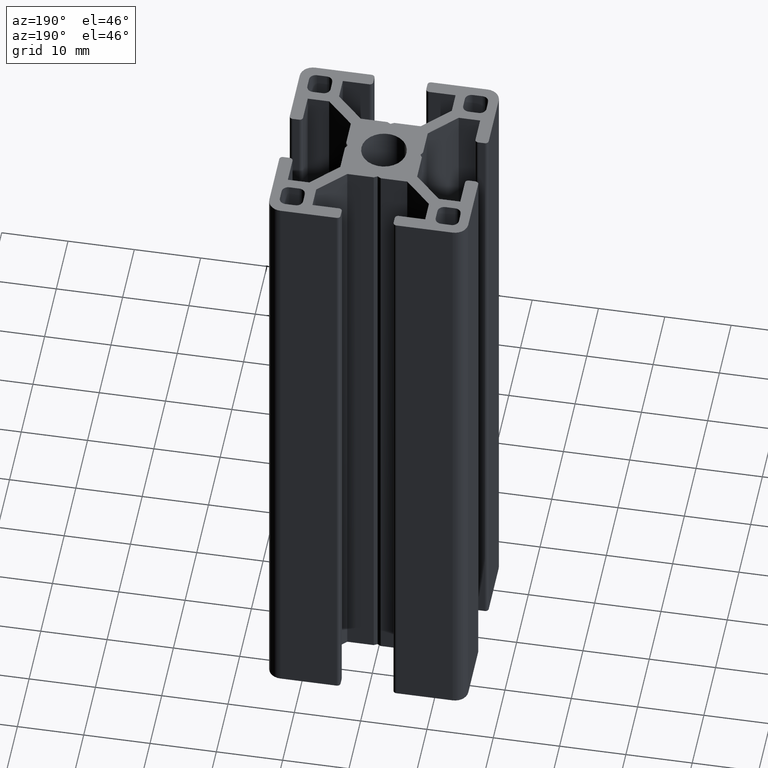
[diagram: clean part render]
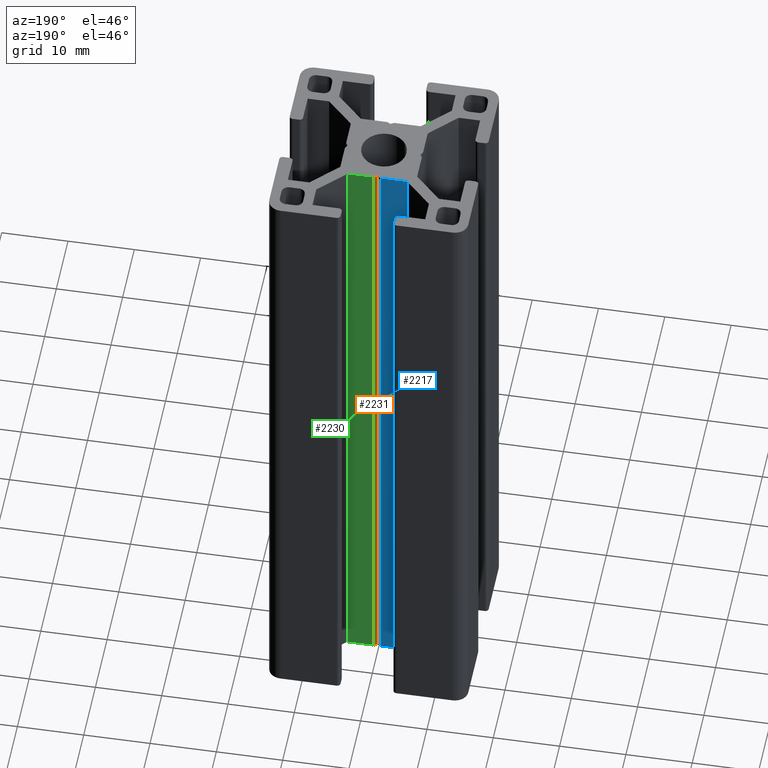
[diagram: same view with three faces highlighted in distinct colors, each labeled with its STEP entity id]
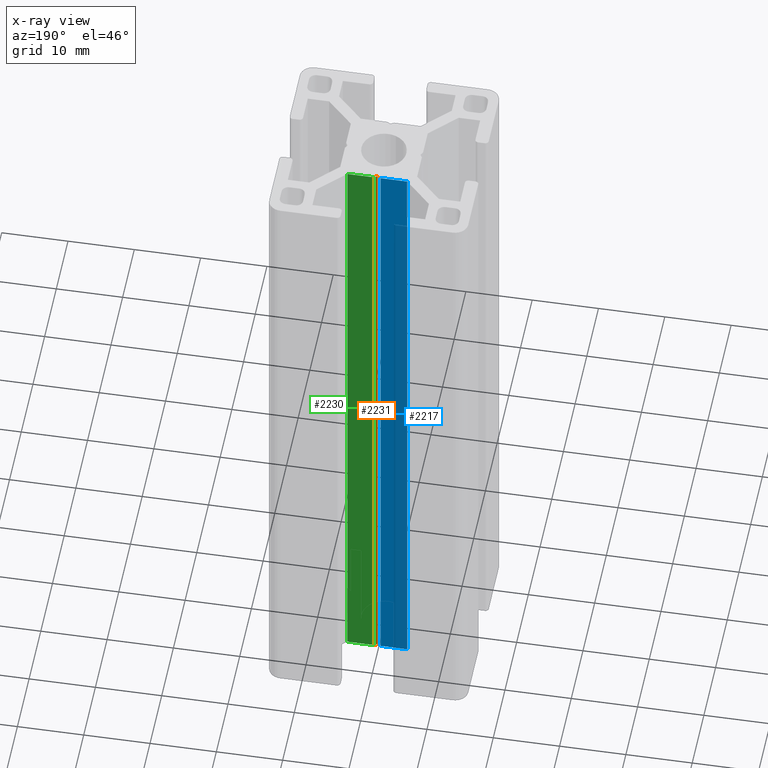
[diagram: x-ray of the same camera — body ghosted, the three highlighted faces saturated]
A machine part, auxiliary view with three faces highlighted in distinct colors.
The next image is the same camera in x-ray (body ghosted, the three faces saturated) — at least one of them is partly hidden behind the body in this view.
Their STEP definitions:

[orange] entity #2231 — the highlighted planar face has unit normal (0.5, -0.866, 0).
#224=FACE_OUTER_BOUND('',#336,.T.);
#336=EDGE_LOOP('',(#1764,#1765,#1766,#1767));
#576=LINE('',#3602,#828);
#577=LINE('',#3605,#829);
#578=LINE('',#3607,#830);
#579=LINE('',#3608,#831);
#828=VECTOR('',#2940,100.);
#829=VECTOR('',#2943,0.599999999999994);
#830=VECTOR('',#2944,0.599999999999994);
#831=VECTOR('',#2945,100.);
#1056=VERTEX_POINT('',#3598);
#1057=VERTEX_POINT('',#3600);
#1058=VERTEX_POINT('',#3604);
#1059=VERTEX_POINT('',#3606);
#1356=EDGE_CURVE('',#1057,#1056,#576,.T.);
#1357=EDGE_CURVE('',#1056,#1058,#577,.T.);
#1358=EDGE_CURVE('',#1059,#1057,#578,.T.);
#1359=EDGE_CURVE('',#1059,#1058,#579,.T.);
#1764=ORIENTED_EDGE('',*,*,#1357,.F.);
#1765=ORIENTED_EDGE('',*,*,#1356,.F.);
#1766=ORIENTED_EDGE('',*,*,#1358,.F.);
#1767=ORIENTED_EDGE('',*,*,#1359,.T.);
#2128=PLANE('',#2402);
#2231=ADVANCED_FACE('',(#224),#2128,.F.);
#2402=AXIS2_PLACEMENT_3D('',#3603,#2941,#2942);
#2940=DIRECTION('',(0.,0.,1.));
#2941=DIRECTION('center_axis',(0.500000000000004,-0.866025403784437,0.));
#2942=DIRECTION('ref_axis',(0.866025403784437,0.500000000000004,0.));
#2943=DIRECTION('',(-0.866025403784436,-0.500000000000004,0.));
#2944=DIRECTION('',(0.866025403784436,0.500000000000004,0.));
#2945=DIRECTION('',(0.,0.,1.));
#3598=CARTESIAN_POINT('',(0.519618478287942,5.79999543105503,100.));
#3600=CARTESIAN_POINT('',(0.519618478287942,5.79999543105503,0.));
#3602=CARTESIAN_POINT('',(0.519618478287942,5.79999543105503,0.));
#3603=CARTESIAN_POINT('Origin',(3.23601728524636E-6,5.49999543105503,0.));
#3604=CARTESIAN_POINT('',(3.23601728524636E-6,5.49999543105503,100.));
#3605=CARTESIAN_POINT('',(-1.19078191840288,4.81249530160353,100.));
#3606=CARTESIAN_POINT('',(3.23601728524636E-6,5.49999543105503,0.));
#3607=CARTESIAN_POINT('',(-1.19078191840288,4.81249530160353,0.));
#3608=CARTESIAN_POINT('',(3.23601728524636E-6,5.49999543105503,0.));

[blue] entity #2217 — the highlighted planar face has unit normal (0, -1, 0).
#210=FACE_OUTER_BOUND('',#322,.T.);
#322=EDGE_LOOP('',(#1708,#1709,#1710,#1711));
#541=LINE('',#3516,#793);
#542=LINE('',#3518,#794);
#543=LINE('',#3520,#795);
#544=LINE('',#3521,#796);
#793=VECTOR('',#2863,4.00759154447611);
#794=VECTOR('',#2864,100.);
#795=VECTOR('',#2865,4.00759154447611);
#796=VECTOR('',#2866,100.);
#1026=VERTEX_POINT('',#3514);
#1027=VERTEX_POINT('',#3515);
#1028=VERTEX_POINT('',#3517);
#1029=VERTEX_POINT('',#3519);
#1313=EDGE_CURVE('',#1026,#1027,#541,.T.);
#1314=EDGE_CURVE('',#1028,#1026,#542,.T.);
#1315=EDGE_CURVE('',#1029,#1028,#543,.T.);
#1316=EDGE_CURVE('',#1029,#1027,#544,.T.);
#1708=ORIENTED_EDGE('',*,*,#1313,.F.);
#1709=ORIENTED_EDGE('',*,*,#1314,.F.);
#1710=ORIENTED_EDGE('',*,*,#1315,.F.);
#1711=ORIENTED_EDGE('',*,*,#1316,.T.);
#2118=PLANE('',#2380);
#2217=ADVANCED_FACE('',(#210),#2118,.F.);
#2380=AXIS2_PLACEMENT_3D('',#3513,#2861,#2862);
#2861=DIRECTION('center_axis',(0.,-1.,0.));
#2862=DIRECTION('ref_axis',(1.,0.,0.));
#2863=DIRECTION('',(-1.,0.,0.));
#2864=DIRECTION('',(0.,0.,1.));
#2865=DIRECTION('',(1.,0.,0.));
#2866=DIRECTION('',(0.,0.,1.));
#3513=CARTESIAN_POINT('Origin',(-4.52720355072949,5.79999543105503,0.));
#3514=CARTESIAN_POINT('',(-0.51961200625338,5.79999543105503,100.));
#3515=CARTESIAN_POINT('',(-4.52720355072949,5.79999543105503,100.));
#3516=CARTESIAN_POINT('',(-2.26360177536475,5.79999543105503,100.));
#3517=CARTESIAN_POINT('',(-0.51961200625338,5.79999543105503,0.));
#3518=CARTESIAN_POINT('',(-0.51961200625338,5.79999543105503,0.));
#3519=CARTESIAN_POINT('',(-4.52720355072949,5.79999543105503,0.));
#3520=CARTESIAN_POINT('',(-2.26360177536475,5.79999543105503,0.));
#3521=CARTESIAN_POINT('',(-4.52720355072949,5.79999543105503,0.));

[green] entity #2230 — the highlighted planar face has unit normal (0, -1, 0).
#223=FACE_OUTER_BOUND('',#335,.T.);
#335=EDGE_LOOP('',(#1760,#1761,#1762,#1763));
#573=LINE('',#3596,#825);
#574=LINE('',#3599,#826);
#575=LINE('',#3601,#827);
#576=LINE('',#3602,#828);
#825=VECTOR('',#2935,100.);
#826=VECTOR('',#2938,4.00759154447611);
#827=VECTOR('',#2939,4.00759154447611);
#828=VECTOR('',#2940,100.);
#1054=VERTEX_POINT('',#3592);
#1055=VERTEX_POINT('',#3594);
#1056=VERTEX_POINT('',#3598);
#1057=VERTEX_POINT('',#3600);
#1353=EDGE_CURVE('',#1055,#1054,#573,.T.);
#1354=EDGE_CURVE('',#1054,#1056,#574,.T.);
#1355=EDGE_CURVE('',#1057,#1055,#575,.T.);
#1356=EDGE_CURVE('',#1057,#1056,#576,.T.);
#1760=ORIENTED_EDGE('',*,*,#1354,.F.);
#1761=ORIENTED_EDGE('',*,*,#1353,.F.);
#1762=ORIENTED_EDGE('',*,*,#1355,.F.);
#1763=ORIENTED_EDGE('',*,*,#1356,.T.);
#2127=PLANE('',#2401);
#2230=ADVANCED_FACE('',(#223),#2127,.F.);
#2401=AXIS2_PLACEMENT_3D('',#3597,#2936,#2937);
#2935=DIRECTION('',(0.,0.,1.));
#2936=DIRECTION('center_axis',(0.,-1.,0.));
#2937=DIRECTION('ref_axis',(1.,0.,0.));
#2938=DIRECTION('',(-1.,0.,0.));
#2939=DIRECTION('',(1.,0.,0.));
#2940=DIRECTION('',(0.,0.,1.));
#3592=CARTESIAN_POINT('',(4.52721002276405,5.79999543105503,100.));
#3594=CARTESIAN_POINT('',(4.52721002276405,5.79999543105503,0.));
#3596=CARTESIAN_POINT('',(4.52721002276405,5.79999543105503,0.));
#3597=CARTESIAN_POINT('Origin',(0.519618478287942,5.79999543105503,0.));
#3598=CARTESIAN_POINT('',(0.519618478287942,5.79999543105503,100.));
#3599=CARTESIAN_POINT('',(0.259809239143971,5.79999543105503,100.));
#3600=CARTESIAN_POINT('',(0.519618478287942,5.79999543105503,0.));
#3601=CARTESIAN_POINT('',(0.259809239143971,5.79999543105503,0.));
#3602=CARTESIAN_POINT('',(0.519618478287942,5.79999543105503,0.));